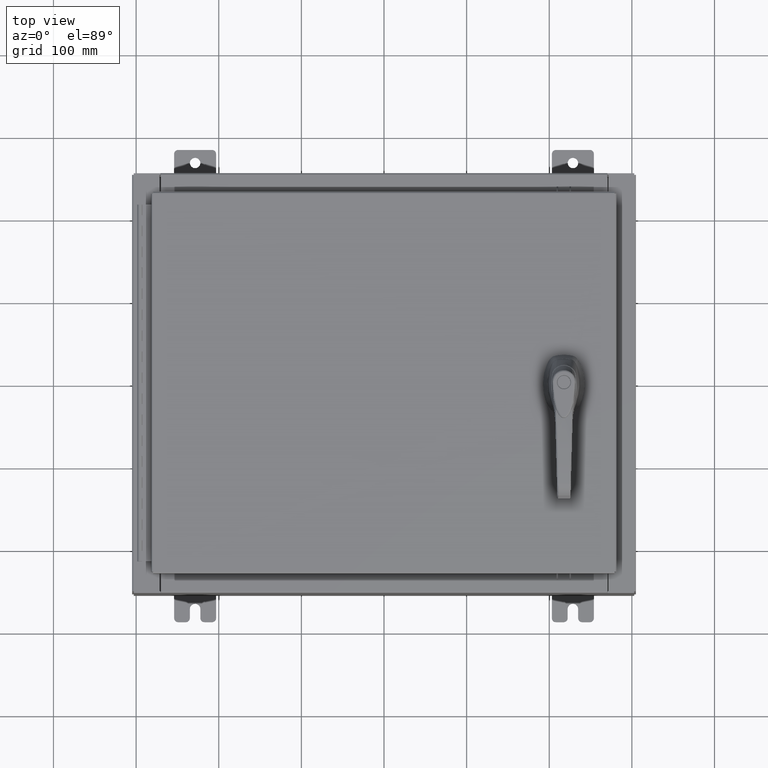
[diagram: clean part render]
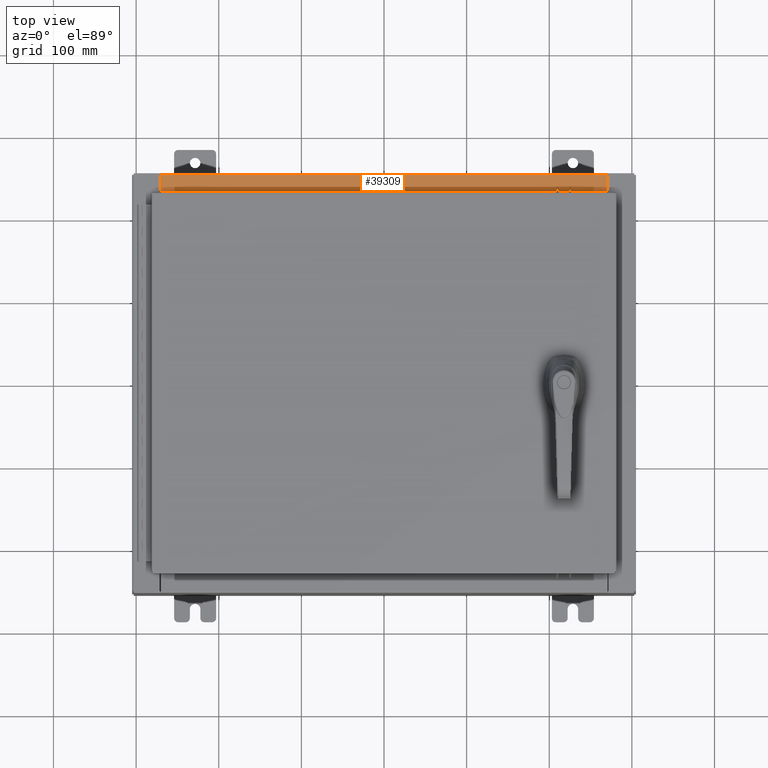
[diagram: same view with one face highlighted and labeled with its STEP entity id]
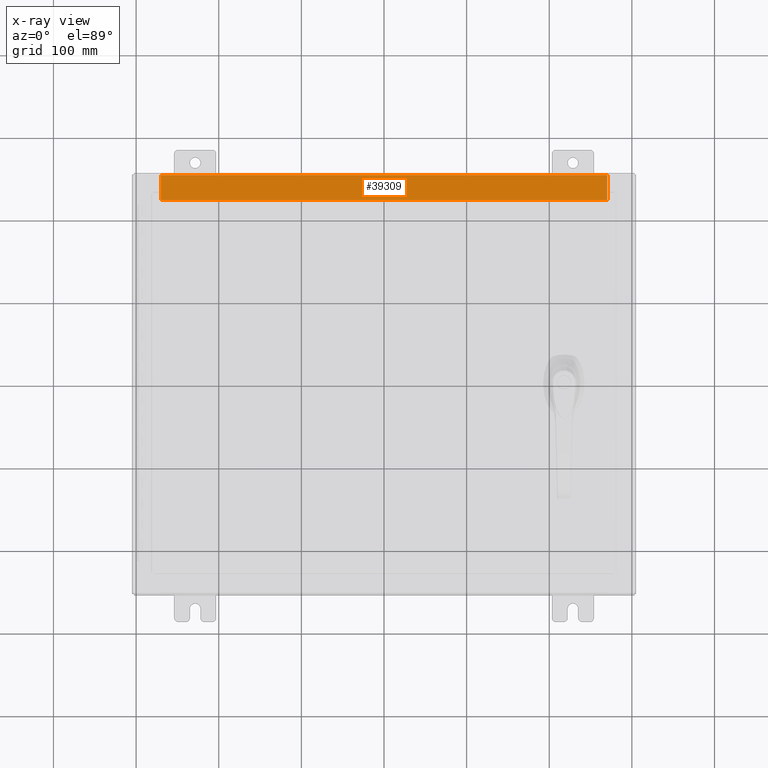
[diagram: x-ray of the same camera — body ghosted, the highlighted face saturated]
A machine part, top view. The second image highlights one B-rep face of the part: STEP entity #39309.
The next image is the same camera in x-ray: the body ghosted, the highlighted face saturated — about 0% of this face is hidden behind the body in this view.
In plain terms, the highlighted planar face has unit normal (0, 0, 1).
Its self-contained STEP definition (entity closure, byte-faithful):
#1316 = VERTEX_POINT ( 'NONE', #34122 ) ;
#6923 = LINE ( 'NONE', #86649, #96594 ) ;
#11193 = DIRECTION ( 'NONE',  ( -0.0000000000000000000, 1.000000000000000000, -3.566381192773190000E-015 ) ) ;
#11991 = VECTOR ( 'NONE', #52125, 39.37007874015748100 ) ;
#12428 = AXIS2_PLACEMENT_3D ( 'NONE', #94700, #95441, #45018 ) ;
#12669 = EDGE_LOOP ( 'NONE', ( #68949, #49586, #57557, #45128 ) ) ;
#18418 = LINE ( 'NONE', #86523, #63193 ) ;
#20808 = CARTESIAN_POINT ( 'NONE',  ( 10.63720000000000400, -1.287299999999999900, 4.000000000000003600 ) ) ;
#24280 = EDGE_CURVE ( 'NONE', #106116, #36765, #18418, .T. ) ;
#27215 = FACE_OUTER_BOUND ( 'NONE', #12669, .T. ) ;
#28486 = CARTESIAN_POINT ( 'NONE',  ( -10.63720000000000200, -1.287299999999999200, 4.000000000000004400 ) ) ;
#31099 = EDGE_CURVE ( 'NONE', #59606, #1316, #6923, .T. ) ;
#31757 = LINE ( 'NONE', #94089, #11991 ) ;
#34122 = CARTESIAN_POINT ( 'NONE',  ( -10.63720000000000200, -0.08770000000000000000, 4.000000000000000000 ) ) ;
#36168 = DIRECTION ( 'NONE',  ( -0.0000000000000000000, -1.000000000000000000, 3.566381192773190000E-015 ) ) ;
#36765 = VERTEX_POINT ( 'NONE', #85071 ) ;
#39309 = ADVANCED_FACE ( 'NONE', ( #27215 ), #86937, .T. ) ;
#41646 = CARTESIAN_POINT ( 'NONE',  ( 10.63720000000000400, -0.08769999999999965300, 4.000000000000000000 ) ) ;
#45018 = DIRECTION ( 'NONE',  ( 0.0000000000000000000, -1.000000000000000000, 3.566381192773190000E-015 ) ) ;
#45128 = ORIENTED_EDGE ( 'NONE', *, *, #46995, .T. ) ;
#45881 = VECTOR ( 'NONE', #79737, 39.37007874015748100 ) ;
#46995 = EDGE_CURVE ( 'NONE', #106116, #1316, #31757, .T. ) ;
#49586 = ORIENTED_EDGE ( 'NONE', *, *, #63070, .F. ) ;
#52125 = DIRECTION ( 'NONE',  ( -1.000000000000000000, 2.568202152506545800E-017, -9.159187855938968600E-032 ) ) ;
#53782 = LINE ( 'NONE', #20808, #45881 ) ;
#57557 = ORIENTED_EDGE ( 'NONE', *, *, #24280, .F. ) ;
#59606 = VERTEX_POINT ( 'NONE', #28486 ) ;
#63070 = EDGE_CURVE ( 'NONE', #36765, #59606, #53782, .T. ) ;
#63193 = VECTOR ( 'NONE', #36168, 39.37007874015748100 ) ;
#68949 = ORIENTED_EDGE ( 'NONE', *, *, #31099, .F. ) ;
#79737 = DIRECTION ( 'NONE',  ( -1.000000000000000000, 0.0000000000000000000, 0.0000000000000000000 ) ) ;
#85071 = CARTESIAN_POINT ( 'NONE',  ( 10.63720000000000200, -1.287299999999999900, 4.000000000000004400 ) ) ;
#86523 = CARTESIAN_POINT ( 'NONE',  ( 10.63720000000000200, -1.300299999999999800, 4.000000000000004400 ) ) ;
#86649 = CARTESIAN_POINT ( 'NONE',  ( -10.63720000000000200, -0.07469999999999973900, 4.000000000000000000 ) ) ;
#86937 = PLANE ( 'NONE',  #12428 ) ;
#94089 = CARTESIAN_POINT ( 'NONE',  ( -2.252313287748606700E-018, -0.08770000000000000000, 4.000000000000000900 ) ) ;
#94700 = CARTESIAN_POINT ( 'NONE',  ( 0.0000000000000000000, 1.425992975200418500E-014, 4.000000000000000000 ) ) ;
#95441 = DIRECTION ( 'NONE',  ( 0.0000000000000000000, 3.566381192773190000E-015, 1.000000000000000000 ) ) ;
#96594 = VECTOR ( 'NONE', #11193, 39.37007874015748100 ) ;
#106116 = VERTEX_POINT ( 'NONE', #41646 ) ;